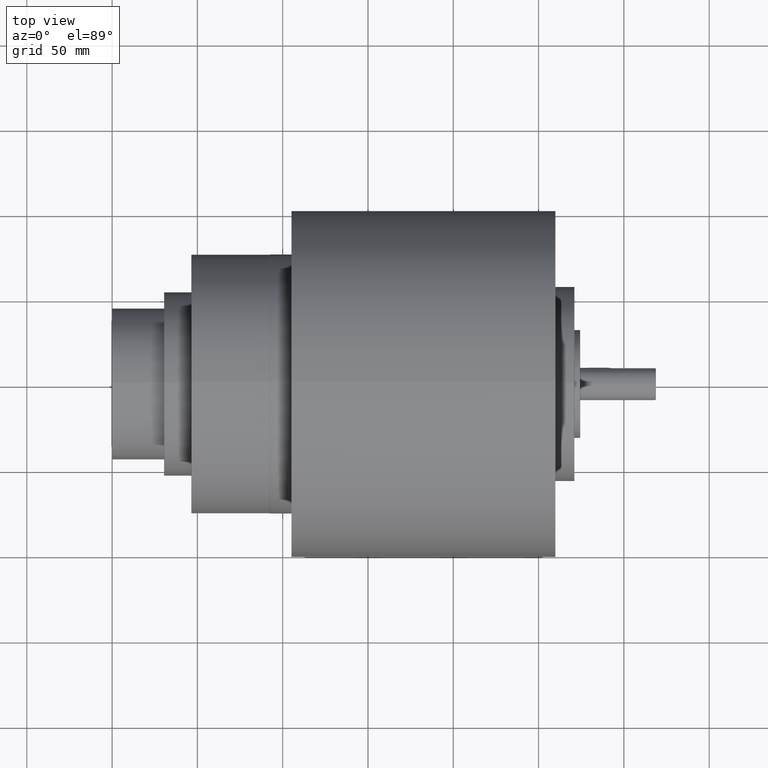
[diagram: clean part render]
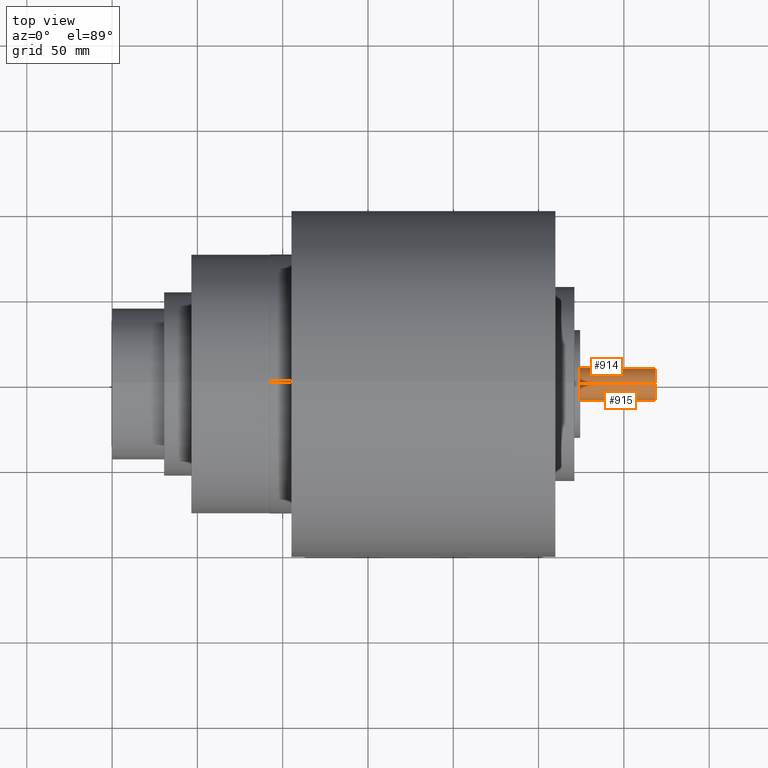
[diagram: same view with one multi-face feature highlighted, each face labeled with its STEP entity id]
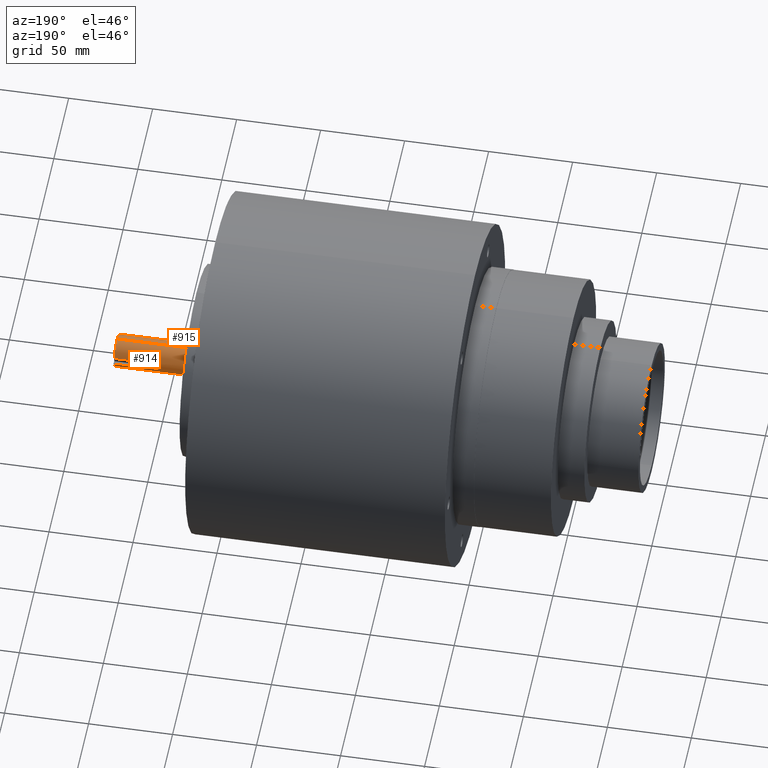
[diagram: same view with one multi-face feature highlighted, each face labeled with its STEP entity id]
A machine part, top view. The highlighted faces form ONE feature: a constant-radius fillet chain: 2 tangent blend faces with common blend radius 9.525 mm. The faces share edges in the B-rep.
A second angle (auxiliary view) of the same feature is appended — it is thin or edge-on in the first view.
Their STEP definitions:
[1] entity #914 (Cylinder):
#8 = EDGE_CURVE ( 'NONE', #582, #583, #1334, .T. ) ;
#16 = EDGE_CURVE ( 'NONE', #478, #584, #1346, .T. ) ;
#17 = EDGE_CURVE ( 'NONE', #475, #582, #1341, .T. ) ;
#24 = EDGE_CURVE ( 'NONE', #478, #583, #1355, .T. ) ;
#25 = EDGE_CURVE ( 'NONE', #585, #584, #1354, .T. ) ;
#26 = EDGE_CURVE ( 'NONE', #586, #585, #251, .T. ) ;
#27 = EDGE_CURVE ( 'NONE', #476, #586, #1359, .T. ) ;
#59 = AXIS2_PLACEMENT_3D ( 'NONE', #607, #608, #609 ) ;
#251 = B_SPLINE_CURVE_WITH_KNOTS ( 'NONE', 3,
 ( #648, #651, #652, #653, #654, #655, #656, #657, #658, #659, #660, #661, #662, #663, #664, #665, #666, #667, #668, #669, #670, #671, #672, #673, #674, #675, #676, #677, #678, #679 ),
 .UNSPECIFIED., .F., .F.,
 ( 4, 2, 2, 2, 2, 2, 2, 2, 2, 2, 2, 2, 2, 2, 4 ),
 ( 0.0000000000000000000, 0.0004682724671070118600, 0.0009365449342140237200, 0.001404817401321035500, 0.001873089868428047900, 0.002809634802642072300, 0.003277907269749053000, 0.003746179736856033700, 0.004214452203963014500, 0.004682724671069994800, 0.005619269605284018700, 0.006087542072391088400, 0.006555814539498158900, 0.007024087006605228600, 0.007492359473712298200 ),
 .UNSPECIFIED. ) ;
#344 = EDGE_LOOP ( 'NONE', ( #1020, #1021, #1022, #1023, #1024, #1025, #1026, #1027 ) ) ;
#475 = VERTEX_POINT ( 'NONE', #1910 ) ;
#476 = VERTEX_POINT ( 'NONE', #1913 ) ;
#478 = VERTEX_POINT ( 'NONE', #1914 ) ;
#582 = VERTEX_POINT ( 'NONE', #2016 ) ;
#583 = VERTEX_POINT ( 'NONE', #2017 ) ;
#584 = VERTEX_POINT ( 'NONE', #2018 ) ;
#585 = VERTEX_POINT ( 'NONE', #2019 ) ;
#586 = VERTEX_POINT ( 'NONE', #2020 ) ;
#607 = CARTESIAN_POINT ( 'NONE',  ( 10.80000000000000200, 0.0000000000000000000, 0.0000000000000000000 ) ) ;
#608 = DIRECTION ( 'NONE',  ( 1.000000000000000000, 0.0000000000000000000, 0.0000000000000000000 ) ) ;
#609 = DIRECTION ( 'NONE',  ( 0.0000000000000000000, 0.0000000000000000000, -1.000000000000000000 ) ) ;
#626 = CARTESIAN_POINT ( 'NONE',  ( 12.52999999999999800, 0.0000000000000000000, 0.0000000000000000000 ) ) ;
#627 = DIRECTION ( 'NONE',  ( -1.000000000000000000, 0.0000000000000000000, 0.0000000000000000000 ) ) ;
#628 = DIRECTION ( 'NONE',  ( 0.0000000000000000000, 8.881784197001252300E-016, -1.000000000000000000 ) ) ;
#629 = CARTESIAN_POINT ( 'NONE',  ( 13.61066017177982200, 4.592425496802575500E-017, -0.3750000000000000600 ) ) ;
#630 = DIRECTION ( 'NONE',  ( -1.000000000000000000, -0.0000000000000000000, -0.0000000000000000000 ) ) ;
#639 = CARTESIAN_POINT ( 'NONE',  ( 13.61066017177982200, 0.0000000000000000000, 0.3750000000000000600 ) ) ;
#646 = CARTESIAN_POINT ( 'NONE',  ( 13.61066017177982200, 0.3630275471641236100, 0.09400000000000005600 ) ) ;
#647 = DIRECTION ( 'NONE',  ( -1.000000000000000000, -0.0000000000000000000, -0.0000000000000000000 ) ) ;
#648 = CARTESIAN_POINT ( 'NONE',  ( 11.55000000000000100, 0.3630275471641236700, -0.09399999999999998600 ) ) ;
#649 = DIRECTION ( 'NONE',  ( 1.000000000000000000, 0.0000000000000000000, 0.0000000000000000000 ) ) ;
#650 = CARTESIAN_POINT ( 'NONE',  ( 13.61066017177982200, 0.3630275471641236100, -0.09400000000000005600 ) ) ;
#651 = CARTESIAN_POINT ( 'NONE',  ( 11.54376417380491800, 0.3630275471641237800, -0.09399999999999998600 ) ) ;
#652 = CARTESIAN_POINT ( 'NONE',  ( 11.53763772774885300, 0.3631881737941786700, -0.09338568273000375000 ) ) ;
#653 = CARTESIAN_POINT ( 'NONE',  ( 11.52559298263443600, 0.3637973698440131700, -0.09098356454589824600 ) ) ;
#654 = CARTESIAN_POINT ( 'NONE',  ( 11.51961084210566400, 0.3642533530679910000, -0.08916496595410219900 ) ) ;
#655 = CARTESIAN_POINT ( 'NONE',  ( 11.50824217909137000, 0.3653775032904807400, -0.08444037224032995000 ) ) ;
#656 = CARTESIAN_POINT ( 'NONE',  ( 11.50285408080492300, 0.3660413484790688300, -0.08155291907157247200 ) ) ;
#657 = CARTESIAN_POINT ( 'NONE',  ( 11.49265674985991800, 0.3674939175500112600, -0.07473531942271381700 ) ) ;
#658 = CARTESIAN_POINT ( 'NONE',  ( 11.48784876780659100, 0.3682848821224759500, -0.07078470076707554800 ) ) ;
#659 = CARTESIAN_POINT ( 'NONE',  ( 11.47490163000688000, 0.3706166214875569700, -0.05783798862123980900 ) ) ;
#660 = CARTESIAN_POINT ( 'NONE',  ( 11.46790550100141600, 0.3721661233806690100, -0.04739418915384383000 ) ) ;
#661 = CARTESIAN_POINT ( 'NONE',  ( 11.46085756536791500, 0.3738049662708187200, -0.03044758333117124300 ) ) ;
#662 = CARTESIAN_POINT ( 'NONE',  ( 11.45903758325327000, 0.3742482829119405100, -0.02449848565685564000 ) ) ;
#663 = CARTESIAN_POINT ( 'NONE',  ( 11.45661005419281000, 0.3748456988948919400, -0.01235536652693925900 ) ) ;
#664 = CARTESIAN_POINT ( 'NONE',  ( 11.45600552301671400, 0.3749986155643241200, -0.006240779862155811300 ) ) ;
#665 = CARTESIAN_POINT ( 'NONE',  ( 11.45599455160246200, 0.3750013657311404000, 0.006073278210901982200 ) ) ;
#666 = CARTESIAN_POINT ( 'NONE',  ( 11.45660899226842700, 0.3748459965715146800, 0.01232949522387445000 ) ) ;
#667 = CARTESIAN_POINT ( 'NONE',  ( 11.45901467606434900, 0.3742538844050218900, 0.02440425384886920800 ) ) ;
#668 = CARTESIAN_POINT ( 'NONE',  ( 11.46079514212617700, 0.3738197684881365800, 0.03027610522915901200 ) ) ;
#669 = CARTESIAN_POINT ( 'NONE',  ( 11.46788803987517400, 0.3721696180137214500, 0.04739433372255913400 ) ) ;
#670 = CARTESIAN_POINT ( 'NONE',  ( 11.47480072899349700, 0.3706354590382506800, 0.05772944698668408500 ) ) ;
#671 = CARTESIAN_POINT ( 'NONE',  ( 11.48785553433782200, 0.3682833323632552800, 0.07079526989769040200 ) ) ;
#672 = CARTESIAN_POINT ( 'NONE',  ( 11.49257139070300900, 0.3675075533089560100, 0.07466799987091853100 ) ) ;
#673 = CARTESIAN_POINT ( 'NONE',  ( 11.50272390864605400, 0.3660584453158461400, 0.08147592624084912200 ) ) ;
#674 = CARTESIAN_POINT ( 'NONE',  ( 11.50822578169816900, 0.3653796025664140000, 0.08443117868993164900 ) ) ;
#675 = CARTESIAN_POINT ( 'NONE',  ( 11.51956530348820200, 0.3642573807194949800, 0.08914840715309926800 ) ) ;
#676 = CARTESIAN_POINT ( 'NONE',  ( 11.52542275072851700, 0.3638083787398385700, 0.09093974910470077600 ) ) ;
#677 = CARTESIAN_POINT ( 'NONE',  ( 11.53752230829570100, 0.3631916684752350400, 0.09337229973986289900 ) ) ;
#678 = CARTESIAN_POINT ( 'NONE',  ( 11.54376400885841700, 0.3630275471641238900, 0.09400000000000004200 ) ) ;
#679 = CARTESIAN_POINT ( 'NONE',  ( 11.55000000000000100, 0.3630275471641237800, 0.09399999999999998600 ) ) ;
#681 = DIRECTION ( 'NONE',  ( -1.000000000000000000, -0.0000000000000000000, -0.0000000000000000000 ) ) ;
#826 = EDGE_CURVE ( 'NONE', #476, #475, #1535, .T. ) ;
#914 = ADVANCED_FACE ( 'NONE', ( #2526 ), #2535, .T. ) ;
#1020 = ORIENTED_EDGE ( 'NONE', *, *, #826, .T. ) ;
#1021 = ORIENTED_EDGE ( 'NONE', *, *, #17, .T. ) ;
#1022 = ORIENTED_EDGE ( 'NONE', *, *, #8, .T. ) ;
#1023 = ORIENTED_EDGE ( 'NONE', *, *, #24, .F. ) ;
#1024 = ORIENTED_EDGE ( 'NONE', *, *, #16, .T. ) ;
#1025 = ORIENTED_EDGE ( 'NONE', *, *, #25, .F. ) ;
#1026 = ORIENTED_EDGE ( 'NONE', *, *, #26, .F. ) ;
#1027 = ORIENTED_EDGE ( 'NONE', *, *, #27, .F. ) ;
#1334 = CIRCLE ( 'NONE', #59, 0.3750000000000000600 ) ;
#1341 = LINE ( 'NONE', #629, #1342 ) ;
#1342 = VECTOR ( 'NONE', #630, 39.37007874015748100 ) ;
#1346 = CIRCLE ( 'NONE', #2690, 0.3750000000000000600 ) ;
#1354 = LINE ( 'NONE', #646, #1358 ) ;
#1355 = LINE ( 'NONE', #639, #1357 ) ;
#1357 = VECTOR ( 'NONE', #647, 39.37007874015748100 ) ;
#1358 = VECTOR ( 'NONE', #649, 39.37007874015748100 ) ;
#1359 = LINE ( 'NONE', #650, #1360 ) ;
#1360 = VECTOR ( 'NONE', #681, 39.37007874015748100 ) ;
#1535 = CIRCLE ( 'NONE', #1642, 0.3750000000000000600 ) ;
#1642 = AXIS2_PLACEMENT_3D ( 'NONE', #2035, #2046, #2047 ) ;
#1732 = AXIS2_PLACEMENT_3D ( 'NONE', #2304, #2303, #2299 ) ;
#1910 = CARTESIAN_POINT ( 'NONE',  ( 12.52999999999999800, 4.592425496802575500E-017, -0.3750000000000000600 ) ) ;
#1913 = CARTESIAN_POINT ( 'NONE',  ( 12.52999999999999800, 0.3630275471641236100, -0.09400000000000005600 ) ) ;
#1914 = CARTESIAN_POINT ( 'NONE',  ( 12.52999999999999800, 0.0000000000000000000, 0.3750000000000000600 ) ) ;
#2016 = CARTESIAN_POINT ( 'NONE',  ( 10.80000000000000200, 4.592425496802575500E-017, -0.3750000000000000600 ) ) ;
#2017 = CARTESIAN_POINT ( 'NONE',  ( 10.80000000000000200, 0.0000000000000000000, 0.3750000000000000600 ) ) ;
#2018 = CARTESIAN_POINT ( 'NONE',  ( 12.52999999999999800, 0.3630275471641236100, 0.09400000000000005600 ) ) ;
#2019 = CARTESIAN_POINT ( 'NONE',  ( 11.55000000000000100, 0.3630275471641237800, 0.09399999999999998600 ) ) ;
#2020 = CARTESIAN_POINT ( 'NONE',  ( 11.55000000000000100, 0.3630275471641236700, -0.09399999999999998600 ) ) ;
#2035 = CARTESIAN_POINT ( 'NONE',  ( 12.52999999999999800, 0.0000000000000000000, 0.0000000000000000000 ) ) ;
#2046 = DIRECTION ( 'NONE',  ( -1.000000000000000000, 0.0000000000000000000, 0.0000000000000000000 ) ) ;
#2047 = DIRECTION ( 'NONE',  ( 0.0000000000000000000, -1.776356839400250500E-015, -1.000000000000000000 ) ) ;
#2299 = DIRECTION ( 'NONE',  ( 0.0000000000000000000, 0.0000000000000000000, 1.000000000000000000 ) ) ;
#2303 = DIRECTION ( 'NONE',  ( -1.000000000000000000, -0.0000000000000000000, -0.0000000000000000000 ) ) ;
#2304 = CARTESIAN_POINT ( 'NONE',  ( 13.61066017177982200, 0.0000000000000000000, 0.0000000000000000000 ) ) ;
#2526 = FACE_OUTER_BOUND ( 'NONE', #344, .T. ) ;
#2535 = CYLINDRICAL_SURFACE ( 'NONE', #1732, 0.3750000000000000600 ) ;
#2690 = AXIS2_PLACEMENT_3D ( 'NONE', #626, #627, #628 ) ;
[2] entity #915 (Cylinder):
#17 = EDGE_CURVE ( 'NONE', #475, #582, #1341, .T. ) ;
#24 = EDGE_CURVE ( 'NONE', #478, #583, #1355, .T. ) ;
#31 = EDGE_CURVE ( 'NONE', #583, #582, #1367, .T. ) ;
#65 = AXIS2_PLACEMENT_3D ( 'NONE', #690, #692, #693 ) ;
#341 = EDGE_LOOP ( 'NONE', ( #1028, #1029, #1030, #1031 ) ) ;
#475 = VERTEX_POINT ( 'NONE', #1910 ) ;
#478 = VERTEX_POINT ( 'NONE', #1914 ) ;
#582 = VERTEX_POINT ( 'NONE', #2016 ) ;
#583 = VERTEX_POINT ( 'NONE', #2017 ) ;
#629 = CARTESIAN_POINT ( 'NONE',  ( 13.61066017177982200, 4.592425496802575500E-017, -0.3750000000000000600 ) ) ;
#630 = DIRECTION ( 'NONE',  ( -1.000000000000000000, -0.0000000000000000000, -0.0000000000000000000 ) ) ;
#639 = CARTESIAN_POINT ( 'NONE',  ( 13.61066017177982200, 0.0000000000000000000, 0.3750000000000000600 ) ) ;
#647 = DIRECTION ( 'NONE',  ( -1.000000000000000000, -0.0000000000000000000, -0.0000000000000000000 ) ) ;
#690 = CARTESIAN_POINT ( 'NONE',  ( 10.80000000000000200, 0.0000000000000000000, 0.0000000000000000000 ) ) ;
#692 = DIRECTION ( 'NONE',  ( 1.000000000000000000, 0.0000000000000000000, 0.0000000000000000000 ) ) ;
#693 = DIRECTION ( 'NONE',  ( 0.0000000000000000000, 0.0000000000000000000, -1.000000000000000000 ) ) ;
#827 = EDGE_CURVE ( 'NONE', #475, #478, #1536, .T. ) ;
#915 = ADVANCED_FACE ( 'NONE', ( #2528 ), #2537, .T. ) ;
#1028 = ORIENTED_EDGE ( 'NONE', *, *, #17, .F. ) ;
#1029 = ORIENTED_EDGE ( 'NONE', *, *, #827, .T. ) ;
#1030 = ORIENTED_EDGE ( 'NONE', *, *, #24, .T. ) ;
#1031 = ORIENTED_EDGE ( 'NONE', *, *, #31, .T. ) ;
#1341 = LINE ( 'NONE', #629, #1342 ) ;
#1342 = VECTOR ( 'NONE', #630, 39.37007874015748100 ) ;
#1355 = LINE ( 'NONE', #639, #1357 ) ;
#1357 = VECTOR ( 'NONE', #647, 39.37007874015748100 ) ;
#1367 = CIRCLE ( 'NONE', #65, 0.3750000000000000600 ) ;
#1536 = CIRCLE ( 'NONE', #1638, 0.3750000000000000600 ) ;
#1638 = AXIS2_PLACEMENT_3D ( 'NONE', #2042, #2049, #2050 ) ;
#1733 = AXIS2_PLACEMENT_3D ( 'NONE', #2307, #2306, #2302 ) ;
#1910 = CARTESIAN_POINT ( 'NONE',  ( 12.52999999999999800, 4.592425496802575500E-017, -0.3750000000000000600 ) ) ;
#1914 = CARTESIAN_POINT ( 'NONE',  ( 12.52999999999999800, 0.0000000000000000000, 0.3750000000000000600 ) ) ;
#2016 = CARTESIAN_POINT ( 'NONE',  ( 10.80000000000000200, 4.592425496802575500E-017, -0.3750000000000000600 ) ) ;
#2017 = CARTESIAN_POINT ( 'NONE',  ( 10.80000000000000200, 0.0000000000000000000, 0.3750000000000000600 ) ) ;
#2042 = CARTESIAN_POINT ( 'NONE',  ( 12.52999999999999800, 0.0000000000000000000, 0.0000000000000000000 ) ) ;
#2049 = DIRECTION ( 'NONE',  ( -1.000000000000000000, 0.0000000000000000000, 0.0000000000000000000 ) ) ;
#2050 = DIRECTION ( 'NONE',  ( 0.0000000000000000000, 0.0000000000000000000, -1.000000000000000000 ) ) ;
#2302 = DIRECTION ( 'NONE',  ( 0.0000000000000000000, 0.0000000000000000000, 1.000000000000000000 ) ) ;
#2306 = DIRECTION ( 'NONE',  ( -1.000000000000000000, -0.0000000000000000000, -0.0000000000000000000 ) ) ;
#2307 = CARTESIAN_POINT ( 'NONE',  ( 13.61066017177982200, 0.0000000000000000000, 0.0000000000000000000 ) ) ;
#2528 = FACE_OUTER_BOUND ( 'NONE', #341, .T. ) ;
#2537 = CYLINDRICAL_SURFACE ( 'NONE', #1733, 0.3750000000000000600 ) ;